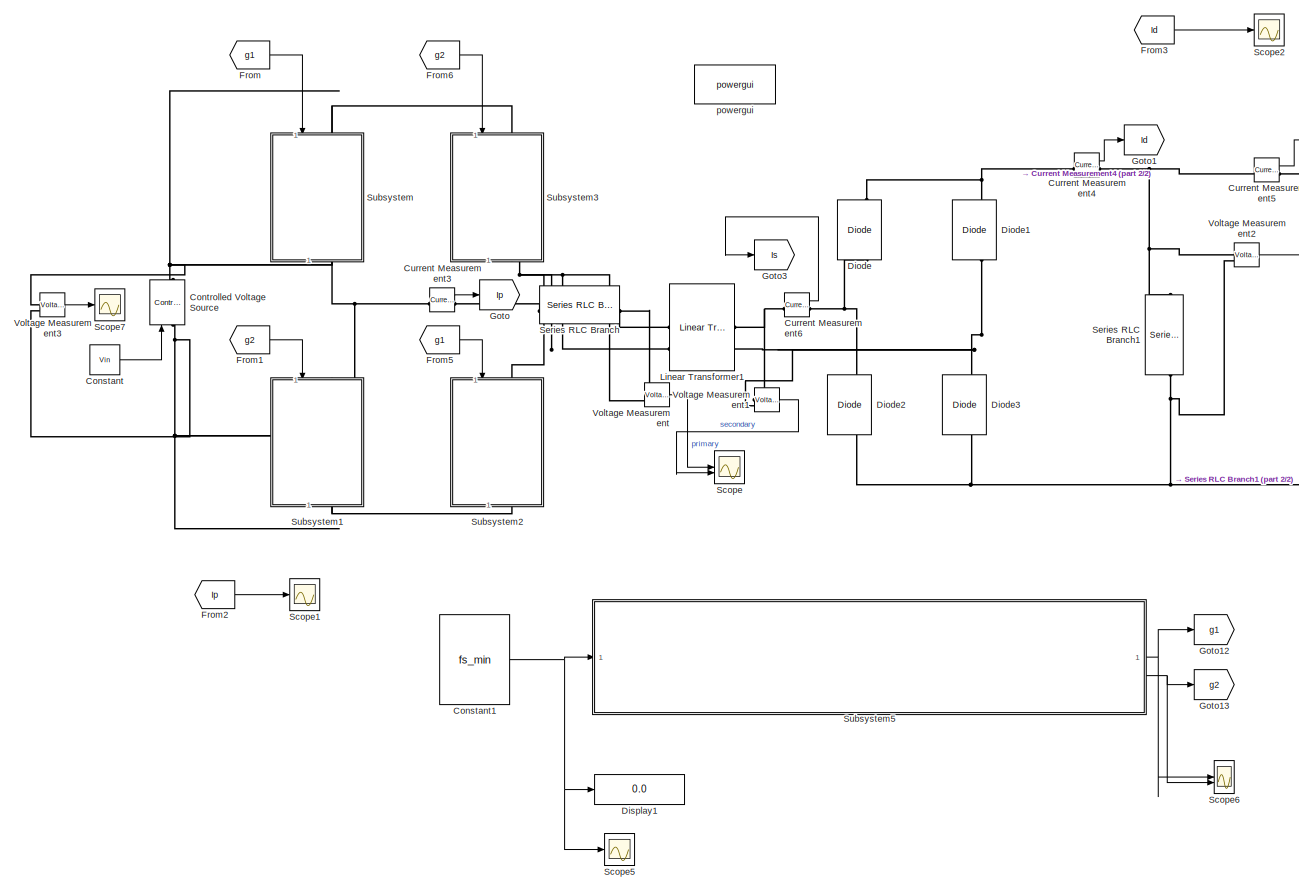
[diagram: root canvas - part 1/2, most of the canvas]
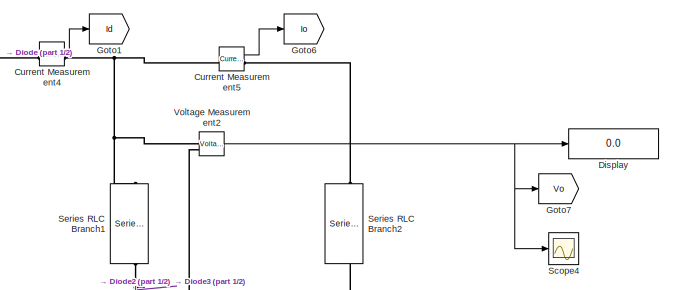
[diagram: root canvas - part 2/2, top right region]
MODEL slx_4402d46546b1
KIND model
CONFIG AbsTol = auto
CONFIG EnableMultiTasking = off
CONFIG FixedStep = auto
CONFIG MaxStep = 1e-4
CONFIG MinStep = auto
CONFIG PreLoadFcn = Rs_fet=1e8;  % FET snubber resistance (ohms)\nCs_fet=inf;  % FET snubber capacitance (ohms)\nVf=0.6;        % Diode forward voltage (V)
CONFIG RelTol = 1e-4
CONFIG SampleTimeConstraint = Unconstrained
CONFIG SolverName = VariableStepAuto
CONFIG StartTime = 0.0
CONFIG StopTime = 0.01
BLOCK [Constant] Constant
  Value = Vin
BLOCK [Constant] Constant1
  Value = fs_min
BLOCK [Reference] Controlled Voltage Source  REF=spsControlledVoltageSourceLib/Controlled Voltage Source
  LibrarySourceBlock = sps_lib/Sources/Controlled Voltage Source
  SourceBlock = spsControlledVoltageSourceLib/Controlled Voltage Source
  SourceType = Controlled Voltage Source
BLOCK [Reference] Current Measurement3  REF=spsCurrentMeasurementLib/Current Measurement
  LibrarySourceBlock = sps_lib/Sensors and Measurements/Current Measurement
  SourceBlock = spsCurrentMeasurementLib/Current Measurement
  SourceType = Current Measurement
  UserDataPersistent = on
BLOCK [Reference] Current Measurement4  REF=spsCurrentMeasurementLib/Current Measurement
  LibrarySourceBlock = sps_lib/Sensors and Measurements/Current Measurement
  SourceBlock = spsCurrentMeasurementLib/Current Measurement
  SourceType = Current Measurement
  UserDataPersistent = on
BLOCK [Reference] Current Measurement5  REF=spsCurrentMeasurementLib/Current Measurement
  LibrarySourceBlock = sps_lib/Sensors and Measurements/Current Measurement
  SourceBlock = spsCurrentMeasurementLib/Current Measurement
  SourceType = Current Measurement
  UserDataPersistent = on
BLOCK [Reference] Current Measurement6  REF=spsCurrentMeasurementLib/Current Measurement
  LibrarySourceBlock = sps_lib/Sensors and Measurements/Current Measurement
  SourceBlock = spsCurrentMeasurementLib/Current Measurement
  SourceType = Current Measurement
  UserDataPersistent = on
BLOCK [Reference] Diode  REF=spsDiodeLib/Diode
  LibrarySourceBlock = sps_lib/Power Electronics/Diode
  NameLocation = right
  SourceBlock = spsDiodeLib/Diode
  SourceType = Diode
BLOCK [Reference] Diode1  REF=spsDiodeLib/Diode
  LibrarySourceBlock = sps_lib/Power Electronics/Diode
  NameLocation = right
  SourceBlock = spsDiodeLib/Diode
  SourceType = Diode
BLOCK [Reference] Diode2  REF=spsDiodeLib/Diode
  LibrarySourceBlock = sps_lib/Power Electronics/Diode
  NameLocation = right
  SourceBlock = spsDiodeLib/Diode
  SourceType = Diode
BLOCK [Reference] Diode3  REF=spsDiodeLib/Diode
  LibrarySourceBlock = sps_lib/Power Electronics/Diode
  NameLocation = right
  SourceBlock = spsDiodeLib/Diode
  SourceType = Diode
BLOCK [Display] Display
  Decimation = 1
BLOCK [Display] Display1
  Decimation = 1
BLOCK [From] From
  GotoTag = g1
BLOCK [From] From1
  GotoTag = g2
BLOCK [From] From2
  GotoTag = Ip
BLOCK [From] From3
  GotoTag = Id
BLOCK [From] From5
  GotoTag = g1
BLOCK [From] From6
  GotoTag = g2
BLOCK [Goto] Goto
  GotoTag = Ip
BLOCK [Goto] Goto1
  GotoTag = Id
BLOCK [Goto] Goto12
  GotoTag = g1
BLOCK [Goto] Goto13
  GotoTag = g2
BLOCK [Goto] Goto3
  GotoTag = Is
BLOCK [Goto] Goto6
  GotoTag = Io
BLOCK [Goto] Goto7
  GotoTag = Vo
BLOCK [Reference] Linear Transformer1  REF=spsLinearTransformerLib/Linear Transformer
  LibrarySourceBlock = sps_lib/Power Grid Elements/Linear Transformer
  SourceBlock = spsLinearTransformerLib/Linear Transformer
  SourceType = Linear Transformer
BLOCK [Scope] Scope
  Floating = off
  NumInputPorts = 2
  ScopeSpecificationString = Simulink.scopes.TimeScopeBlockCfg('CurrentConfiguration', extmgr.ConfigurationSet(extmgr.Configuration('Core','General UI',true),extmgr.Configuration('Core','Source UI',true),extmgr.Configuration('Sources','WiredSimulink',true,'DataLoggingVariableName','ScopeData1'),extmgr.Configuration('Visuals','Time Domain',true,'SerializedDisplays',{struct('MinYLimReal','-501.16724','MaxYLimReal','501.17613','...<+1510ch>
BLOCK [Scope] Scope1
  Floating = off
  NumInputPorts = 1
  ScopeSpecificationString = Simulink.scopes.TimeScopeBlockCfg('CurrentConfiguration', extmgr.ConfigurationSet(extmgr.Configuration('Core','General UI',true),extmgr.Configuration('Core','Source UI',true),extmgr.Configuration('Sources','WiredSimulink',true,'DataLoggingVariableName','ScopeData2'),extmgr.Configuration('Visuals','Time Domain',true,'SerializedDisplays',{struct('MinYLimReal','-5.89206','MaxYLimReal','5.74346','YLab...<+1423ch>
BLOCK [Scope] Scope2
  Floating = off
  NumInputPorts = 1
  ScopeSpecificationString = Simulink.scopes.TimeScopeBlockCfg('CurrentConfiguration', extmgr.ConfigurationSet(extmgr.Configuration('Core','General UI',true),extmgr.Configuration('Core','Source UI',true),extmgr.Configuration('Sources','WiredSimulink',true,'DataLoggingVariableName','ScopeData3'),extmgr.Configuration('Visuals','Time Domain',true,'SerializedDisplays',{struct('MinYLimReal','-0.32827','MaxYLimReal','2.95204','YLab...<+1398ch>
BLOCK [Scope] Scope4
  Floating = off
  NumInputPorts = 1
  ScopeSpecificationString = Simulink.scopes.TimeScopeBlockCfg('CurrentConfiguration', extmgr.ConfigurationSet(extmgr.Configuration('Core','General UI',true),extmgr.Configuration('Core','Source UI',true),extmgr.Configuration('Sources','WiredSimulink',true,'DataLoggingVariableName','ScopeData1'),extmgr.Configuration('Visuals','Time Domain',true,'SerializedDisplays',{struct('MinYLimReal','170.3524','MaxYLimReal','466.80609','YL...<+1439ch>
BLOCK [Scope] Scope5
  Floating = off
  NumInputPorts = 1
  ScopeSpecificationString = Simulink.scopes.TimeScopeBlockCfg('CurrentConfiguration', extmgr.ConfigurationSet(extmgr.Configuration('Core','General UI',true),extmgr.Configuration('Core','Source UI',true),extmgr.Configuration('Sources','WiredSimulink',true,'DataLoggingVariableName','ScopeData2'),extmgr.Configuration('Visuals','Time Domain',true,'SerializedDisplays',{struct('MinYLimReal','89178.50113','MaxYLimReal','123424.6109...<+1403ch>
BLOCK [Scope] Scope6
  Floating = off
  NumInputPorts = 2
  ScopeSpecificationString = Simulink.scopes.TimeScopeBlockCfg('CurrentConfiguration', extmgr.ConfigurationSet(extmgr.Configuration('Core','General UI',true),extmgr.Configuration('Core','Source UI',true),extmgr.Configuration('Sources','WiredSimulink',true,'DataLoggingVariableName','ScopeData3'),extmgr.Configuration('Visuals','Time Domain',true,'SerializedDisplays',{struct('MinYLimReal','-0.125','MaxYLimReal','1.125','YLabelRe...<+1788ch>
BLOCK [Scope] Scope7
  Floating = off
  NumInputPorts = 1
  ScopeSpecificationString = Simulink.scopes.TimeScopeBlockCfg('CurrentConfiguration', extmgr.ConfigurationSet(extmgr.Configuration('Core','General UI',true),extmgr.Configuration('Core','Source UI',true),extmgr.Configuration('Sources','WiredSimulink',true,'DataLoggingVariableName','ScopeData4'),extmgr.Configuration('Visuals','Time Domain',true,'SerializedDisplays',{struct('MinYLimReal','240.00000','MaxYLimReal','440.00000','Y...<+1393ch>
BLOCK [Reference] Series RLC Branch  REF=spsSeriesRLCBranchLib/Series RLC Branch
  LibrarySourceBlock = sps_lib/Passives/Series RLC Branch
  SourceBlock = spsSeriesRLCBranchLib/Series RLC Branch
  SourceType = Series RLC Branch
BLOCK [Reference] Series RLC Branch1  REF=spsSeriesRLCBranchLib/Series RLC Branch
  LibrarySourceBlock = sps_lib/Passives/Series RLC Branch
  NameLocation = left
  SourceBlock = spsSeriesRLCBranchLib/Series RLC Branch
  SourceType = Series RLC Branch
BLOCK [Reference] Series RLC Branch2  REF=spsSeriesRLCBranchLib/Series RLC Branch
  LibrarySourceBlock = sps_lib/Passives/Series RLC Branch
  NameLocation = left
  SourceBlock = spsSeriesRLCBranchLib/Series RLC Branch
  SourceType = Series RLC Branch
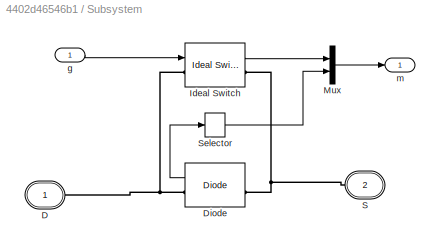
BLOCK [SubSystem] Subsystem
  NameLocation = left
BLOCK [PMIOPort] Subsystem/D
  Side = Left
  Tag = PMCPort
BLOCK [Reference] Subsystem/Diode  REF=spsDiodeLib/Diode
  LibrarySourceBlock = sps_lib/Power Electronics/Diode
  SourceBlock = spsDiodeLib/Diode
  SourceType = Diode
BLOCK [Reference] Subsystem/Ideal Switch  REF=spsIdealSwitchLib/Ideal Switch
  LibrarySourceBlock = sps_lib/Power Electronics/Ideal Switch
  SourceBlock = spsIdealSwitchLib/Ideal Switch
  SourceType = Ideal Switch
BLOCK [Mux] Subsystem/Mux
  DisplayOption = bar
  Inputs = [2,1]
BLOCK [PMIOPort] Subsystem/S
  Port = 2
  Side = Right
  Tag = PMCPort
BLOCK [Selector] Subsystem/Selector
  IndexOptions = Index vector (dialog)
  Indices = 1
  InputPortWidth = 2
  OutputSizes = 1
BLOCK [Inport] Subsystem/g
BLOCK [Outport] Subsystem/m
  VectorParamsAs1DForOutWhenUnconnected = off
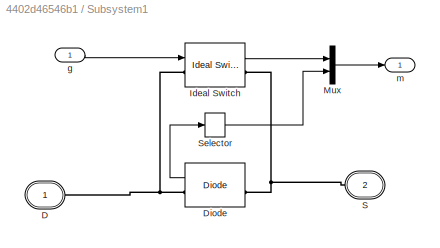
BLOCK [SubSystem] Subsystem1
  NameLocation = left
BLOCK [PMIOPort] Subsystem1/D
  Side = Left
  Tag = PMCPort
BLOCK [Reference] Subsystem1/Diode  REF=spsDiodeLib/Diode
  LibrarySourceBlock = sps_lib/Power Electronics/Diode
  SourceBlock = spsDiodeLib/Diode
  SourceType = Diode
BLOCK [Reference] Subsystem1/Ideal Switch  REF=spsIdealSwitchLib/Ideal Switch
  LibrarySourceBlock = sps_lib/Power Electronics/Ideal Switch
  SourceBlock = spsIdealSwitchLib/Ideal Switch
  SourceType = Ideal Switch
BLOCK [Mux] Subsystem1/Mux
  DisplayOption = bar
  Inputs = [2,1]
BLOCK [PMIOPort] Subsystem1/S
  Port = 2
  Side = Right
  Tag = PMCPort
BLOCK [Selector] Subsystem1/Selector
  IndexOptions = Index vector (dialog)
  Indices = 1
  InputPortWidth = 2
  OutputSizes = 1
BLOCK [Inport] Subsystem1/g
BLOCK [Outport] Subsystem1/m
  VectorParamsAs1DForOutWhenUnconnected = off
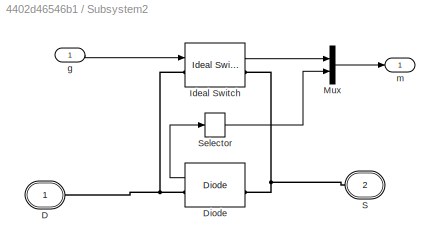
BLOCK [SubSystem] Subsystem2
  NameLocation = left
BLOCK [PMIOPort] Subsystem2/D
  Side = Left
  Tag = PMCPort
BLOCK [Reference] Subsystem2/Diode  REF=spsDiodeLib/Diode
  LibrarySourceBlock = sps_lib/Power Electronics/Diode
  SourceBlock = spsDiodeLib/Diode
  SourceType = Diode
BLOCK [Reference] Subsystem2/Ideal Switch  REF=spsIdealSwitchLib/Ideal Switch
  LibrarySourceBlock = sps_lib/Power Electronics/Ideal Switch
  SourceBlock = spsIdealSwitchLib/Ideal Switch
  SourceType = Ideal Switch
BLOCK [Mux] Subsystem2/Mux
  DisplayOption = bar
  Inputs = [2,1]
BLOCK [PMIOPort] Subsystem2/S
  Port = 2
  Side = Right
  Tag = PMCPort
BLOCK [Selector] Subsystem2/Selector
  IndexOptions = Index vector (dialog)
  Indices = 1
  InputPortWidth = 2
  OutputSizes = 1
BLOCK [Inport] Subsystem2/g
BLOCK [Outport] Subsystem2/m
  VectorParamsAs1DForOutWhenUnconnected = off
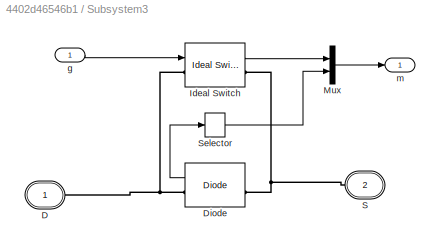
BLOCK [SubSystem] Subsystem3
  NameLocation = left
BLOCK [PMIOPort] Subsystem3/D
  Side = Left
  Tag = PMCPort
BLOCK [Reference] Subsystem3/Diode  REF=spsDiodeLib/Diode
  LibrarySourceBlock = sps_lib/Power Electronics/Diode
  SourceBlock = spsDiodeLib/Diode
  SourceType = Diode
BLOCK [Reference] Subsystem3/Ideal Switch  REF=spsIdealSwitchLib/Ideal Switch
  LibrarySourceBlock = sps_lib/Power Electronics/Ideal Switch
  SourceBlock = spsIdealSwitchLib/Ideal Switch
  SourceType = Ideal Switch
BLOCK [Mux] Subsystem3/Mux
  DisplayOption = bar
  Inputs = [2,1]
BLOCK [PMIOPort] Subsystem3/S
  Port = 2
  Side = Right
  Tag = PMCPort
BLOCK [Selector] Subsystem3/Selector
  IndexOptions = Index vector (dialog)
  Indices = 1
  InputPortWidth = 2
  OutputSizes = 1
BLOCK [Inport] Subsystem3/g
BLOCK [Outport] Subsystem3/m
  VectorParamsAs1DForOutWhenUnconnected = off
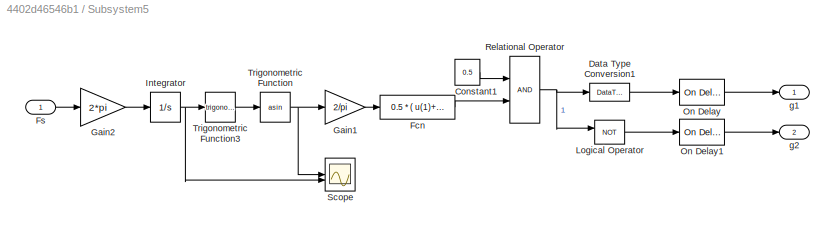
BLOCK [SubSystem] Subsystem5
BLOCK [Constant] Subsystem5/Constant1
  Value = 0.5
BLOCK [DataTypeConversion] Subsystem5/Data Type Conversion1
  OutDataTypeStr = double
  RndMeth = Floor
  SaturateOnIntegerOverflow = off
BLOCK [Fcn] Subsystem5/Fcn
  Expr = 0.5 * ( u(1)+1 )
BLOCK [Inport] Subsystem5/Fs
BLOCK [Gain] Subsystem5/Gain1
  Gain = 2/pi
  OutDataTypeStr = Inherit: Same as input
  ParamDataTypeStr = Inherit: Same as input
  SaturateOnIntegerOverflow = on
BLOCK [Gain] Subsystem5/Gain2
  Gain = 2*pi
  OutDataTypeStr = Inherit: Same as input
  ParamDataTypeStr = Inherit: Same as input
  SaturateOnIntegerOverflow = on
BLOCK [Integrator] Subsystem5/Integrator
BLOCK [Logic] Subsystem5/Logical Operator
  AllPortsSameDT = off
  Operator = NOT
  OutDataTypeStr = float('double')
BLOCK [Reference] Subsystem5/On Delay  REF=spsOnDelayLib/On Delay
  LibrarySourceBlock = sps_lib/Control/On Delay
  NameLocation = top
  SourceBlock = spsOnDelayLib/On Delay
  SourceType = On/Off Delay
BLOCK [Reference] Subsystem5/On Delay1  REF=spsOnDelayLib/On Delay
  LibrarySourceBlock = sps_lib/Control/On Delay
  NameLocation = top
  SourceBlock = spsOnDelayLib/On Delay
  SourceType = On/Off Delay
BLOCK [RelationalOperator] Subsystem5/Relational Operator
  InputSameDT = off
  OutDataTypeStr = boolean
BLOCK [Scope] Subsystem5/Scope
  Floating = off
  NumInputPorts = 2
  ScopeSpecificationString = Simulink.scopes.TimeScopeBlockCfg('CurrentConfiguration', extmgr.ConfigurationSet(extmgr.Configuration('Core','General UI',true),extmgr.Configuration('Core','Source UI',true),extmgr.Configuration('Sources','WiredSimulink',true,'DataLoggingVariableName','ScopeData1'),extmgr.Configuration('Visuals','Time Domain',true,'SerializedDisplays',{struct('MinYLimReal','-3.43698','MaxYLimReal','4.67674','YLab...<+1413ch>
BLOCK [Trigonometry] Subsystem5/Trigonometric Function
  Operator = asin
BLOCK [Trigonometry] Subsystem5/Trigonometric Function3
BLOCK [Outport] Subsystem5/g1
BLOCK [Outport] Subsystem5/g2
  Port = 2
BLOCK [Reference] Voltage Measurement  REF=spsVoltageMeasurementLib/Voltage Measurement
  LibrarySourceBlock = sps_lib/Sensors and Measurements/Voltage Measurement
  SourceBlock = spsVoltageMeasurementLib/Voltage Measurement
  SourceType = Voltage Measurement
  UserDataPersistent = on
BLOCK [Reference] Voltage Measurement1  REF=spsVoltageMeasurementLib/Voltage Measurement
  LibrarySourceBlock = sps_lib/Sensors and Measurements/Voltage Measurement
  SourceBlock = spsVoltageMeasurementLib/Voltage Measurement
  SourceType = Voltage Measurement
  UserDataPersistent = on
BLOCK [Reference] Voltage Measurement2  REF=spsVoltageMeasurementLib/Voltage Measurement
  LibrarySourceBlock = sps_lib/Sensors and Measurements/Voltage Measurement
  SourceBlock = spsVoltageMeasurementLib/Voltage Measurement
  SourceType = Voltage Measurement
  UserDataPersistent = on
BLOCK [Reference] Voltage Measurement3  REF=spsVoltageMeasurementLib/Voltage Measurement
  LibrarySourceBlock = sps_lib/Sensors and Measurements/Voltage Measurement
  SourceBlock = spsVoltageMeasurementLib/Voltage Measurement
  SourceType = Voltage Measurement
  UserDataPersistent = on
BLOCK [Reference] powergui  REF=spspowerguiLib/powergui
  Priority = 1
  SourceBlock = spspowerguiLib/powergui
  SourceType = PSB option menu block
NET Constant1:1 -> Display1:1, Scope5:1, Subsystem5:1
LINE Constant:1 -> Controlled Voltage Source:1
LINE Current Measurement3:1 -> Goto:1
LINE Current Measurement4:1 -> Goto1:1
LINE Current Measurement5:1 -> Goto6:1
LINE Current Measurement6:1 -> Goto3:1
LINE From1:1 -> Subsystem1:1
LINE From2:1 -> Scope1:1
LINE From3:1 -> Scope2:1
LINE From5:1 -> Subsystem2:1
LINE From6:1 -> Subsystem3:1
LINE From:1 -> Subsystem:1
LINE Subsystem/Diode:1 -> Subsystem/Selector:1
LINE Subsystem/Ideal Switch:1 -> Subsystem/Mux:1
LINE Subsystem/Mux:1 -> Subsystem/m:1
LINE Subsystem/Selector:1 -> Subsystem/Mux:2
LINE Subsystem/g:1 -> Subsystem/Ideal Switch:1
LINE Subsystem1/Diode:1 -> Subsystem1/Selector:1
LINE Subsystem1/Ideal Switch:1 -> Subsystem1/Mux:1
LINE Subsystem1/Mux:1 -> Subsystem1/m:1
LINE Subsystem1/Selector:1 -> Subsystem1/Mux:2
LINE Subsystem1/g:1 -> Subsystem1/Ideal Switch:1
LINE Subsystem2/Diode:1 -> Subsystem2/Selector:1
LINE Subsystem2/Ideal Switch:1 -> Subsystem2/Mux:1
LINE Subsystem2/Mux:1 -> Subsystem2/m:1
LINE Subsystem2/Selector:1 -> Subsystem2/Mux:2
LINE Subsystem2/g:1 -> Subsystem2/Ideal Switch:1
LINE Subsystem3/Diode:1 -> Subsystem3/Selector:1
LINE Subsystem3/Ideal Switch:1 -> Subsystem3/Mux:1
LINE Subsystem3/Mux:1 -> Subsystem3/m:1
LINE Subsystem3/Selector:1 -> Subsystem3/Mux:2
LINE Subsystem3/g:1 -> Subsystem3/Ideal Switch:1
LINE Subsystem5/Constant1:1 -> Subsystem5/Relational Operator:1
LINE Subsystem5/Data Type Conversion1:1 -> Subsystem5/On Delay:1
LINE Subsystem5/Fcn:1 -> Subsystem5/Relational Operator:2
LINE Subsystem5/Fs:1 -> Subsystem5/Gain2:1
LINE Subsystem5/Gain1:1 -> Subsystem5/Fcn:1
LINE Subsystem5/Gain2:1 -> Subsystem5/Integrator:1
NET Subsystem5/Integrator:1 -> Subsystem5/Scope:2, Subsystem5/Trigonometric Function3:1
LINE Subsystem5/Logical Operator:1 -> Subsystem5/On Delay1:1
LINE Subsystem5/On Delay1:1 -> Subsystem5/g2:1
LINE Subsystem5/On Delay:1 -> Subsystem5/g1:1
NET Subsystem5/Relational Operator:1 -> Subsystem5/Data Type Conversion1:1, Subsystem5/Logical Operator:1
LINE Subsystem5/Trigonometric Function3:1 -> Subsystem5/Trigonometric Function:1
NET Subsystem5/Trigonometric Function:1 -> Subsystem5/Gain1:1, Subsystem5/Scope:1
NET Subsystem5:1 -> Goto12:1, Scope6:1
NET Subsystem5:2 -> Goto13:1, Scope6:2
LINE Voltage Measurement1:1 -> Scope:2
NET Voltage Measurement2:1 -> Display:1, Goto7:1, Scope4:1
LINE Voltage Measurement3:1 -> Scope7:1
LINE Voltage Measurement:1 -> Scope:1
PNET net1: Controlled Voltage Source:LConn1 -- Subsystem1:RConn1 -- Subsystem2:RConn1 -- Voltage Measurement3:LConn2
PNET net2: Controlled Voltage Source:RConn1 -- Subsystem3:LConn1 -- Subsystem:LConn1 -- Voltage Measurement3:LConn1
PNET net3: Current Measurement3:LConn1 -- Subsystem1:LConn1 -- Subsystem:RConn1
PLINE Current Measurement3:RConn1 -- Series RLC Branch:LConn1
PNET net4: Current Measurement4:LConn1 -- Diode1:RConn1 -- Diode:RConn1
PNET net5: Current Measurement4:RConn1 -- Current Measurement5:LConn1 -- Series RLC Branch1:LConn1 -- Voltage Measurement2:LConn1
PLINE Current Measurement5:RConn1 -- Series RLC Branch2:LConn1
PNET net6: Current Measurement6:LConn1 -- Linear Transformer1:RConn1 -- Voltage Measurement1:LConn1
PNET net7: Current Measurement6:RConn1 -- Diode2:RConn1 -- Diode:LConn1
PNET net8: Diode1:LConn1 -- Diode3:RConn1 -- Linear Transformer1:RConn2 -- Voltage Measurement1:LConn2
PNET net9: Diode2:LConn1 -- Diode3:LConn1 -- Series RLC Branch1:RConn1 -- Series RLC Branch2:RConn1 -- Voltage Measurement2:LConn2
PNET net10: Linear Transformer1:LConn1 -- Series RLC Branch:RConn1 -- Voltage Measurement:LConn1
PNET net11: Linear Transformer1:LConn2 -- Subsystem2:LConn1 -- Subsystem3:RConn1 -- Voltage Measurement:LConn2
PNET net12: Subsystem/D:RConn1 -- Subsystem/Diode:RConn1 -- Subsystem/Ideal Switch:LConn1
PNET net13: Subsystem/Diode:LConn1 -- Subsystem/Ideal Switch:RConn1 -- Subsystem/S:RConn1
PNET net14: Subsystem1/D:RConn1 -- Subsystem1/Diode:RConn1 -- Subsystem1/Ideal Switch:LConn1
PNET net15: Subsystem1/Diode:LConn1 -- Subsystem1/Ideal Switch:RConn1 -- Subsystem1/S:RConn1
PNET net16: Subsystem2/D:RConn1 -- Subsystem2/Diode:RConn1 -- Subsystem2/Ideal Switch:LConn1
PNET net17: Subsystem2/Diode:LConn1 -- Subsystem2/Ideal Switch:RConn1 -- Subsystem2/S:RConn1
PNET net18: Subsystem3/D:RConn1 -- Subsystem3/Diode:RConn1 -- Subsystem3/Ideal Switch:LConn1
PNET net19: Subsystem3/Diode:LConn1 -- Subsystem3/Ideal Switch:RConn1 -- Subsystem3/S:RConn1
note: NET lines group one-source signal fan-out (src -> all destinations, sorted); 1:1 wires keep LINE; PNET lines group multi-terminal physical nets as a canonical sorted terminal list (undirected conserving connections); 2-terminal nets keep the pairwise PLINE form
